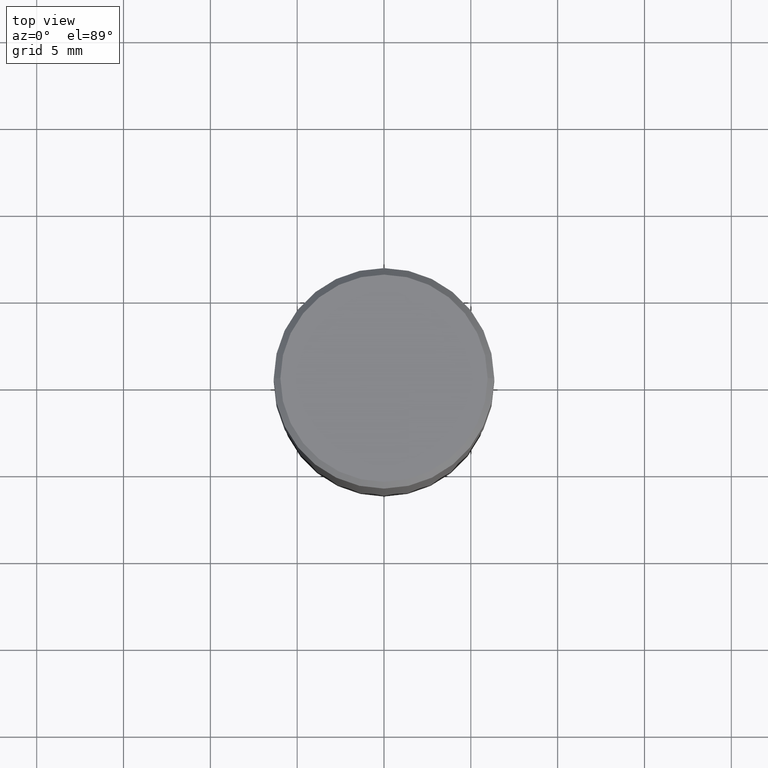
[diagram: clean part render]
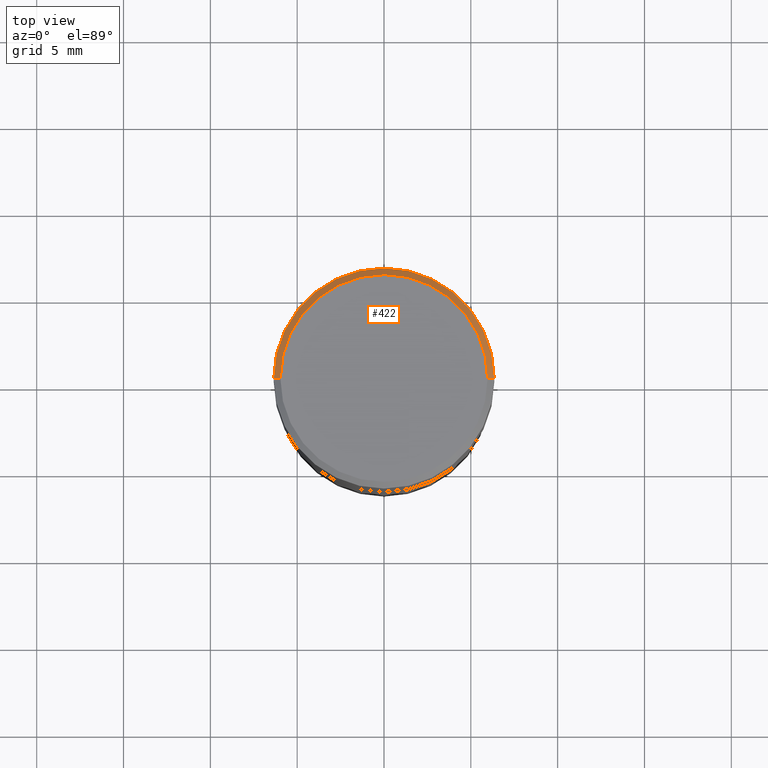
[diagram: same view with one face highlighted and labeled with its STEP entity id]
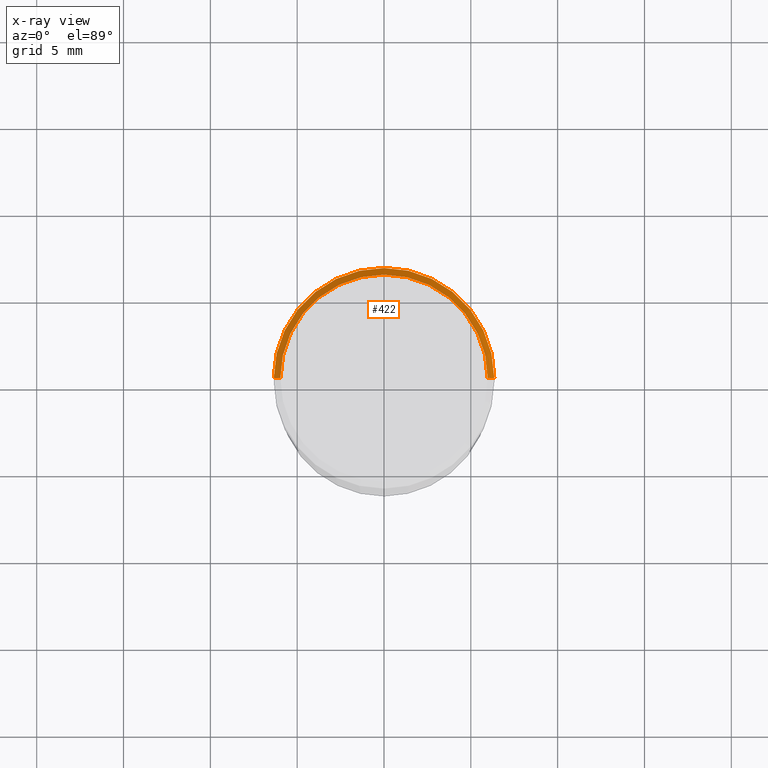
[diagram: x-ray of the same camera — body ghosted, the highlighted face saturated]
A machine part, top view. The second image highlights one B-rep face of the part: STEP entity #422.
The next image is the same camera in x-ray: the body ghosted, the highlighted face saturated — about 0% of this face is hidden behind the body in this view.
In plain terms, the highlighted conical surface has half-angle 45 deg.
Its self-contained STEP definition (entity closure, byte-faithful):
#60 = AXIS2_PLACEMENT_3D ( 'NONE', #328, #441, #232 ) ;
#75 = EDGE_LOOP ( 'NONE', ( #352, #413, #242, #461 ) ) ;
#120 = CIRCLE ( 'NONE', #209, 0.2500000000000000000 ) ;
#130 = CARTESIAN_POINT ( 'NONE',  ( -0.2500000000000000000, 1.693368449338919401E-15, -0.01499999999999999944 ) ) ;
#134 = CARTESIAN_POINT ( 'NONE',  ( -0.2349999999999999867, 1.667182339297596256E-15, 1.568636843340762393E-16 ) ) ;
#138 = CARTESIAN_POINT ( 'NONE',  ( -0.2500000000000000000, 9.455763057682970257E-16, -0.01499999999999999944 ) ) ;
#180 = VERTEX_POINT ( 'NONE', #435 ) ;
#183 = AXIS2_PLACEMENT_3D ( 'NONE', #308, #276, #411 ) ;
#208 = DIRECTION ( 'NONE',  ( 0.7071067811865441310, -7.319954787623245001E-15, -0.7071067811865509034 ) ) ;
#209 = AXIS2_PLACEMENT_3D ( 'NONE', #293, #443, #301 ) ;
#213 = EDGE_CURVE ( 'NONE', #253, #302, #120, .T. ) ;
#232 = DIRECTION ( 'NONE',  ( -1.000000000000000000, 6.982962677686266711E-15, 0.000000000000000000 ) ) ;
#240 = LINE ( 'NONE', #311, #444 ) ;
#242 = ORIENTED_EDGE ( 'NONE', *, *, #213, .T. ) ;
#245 = LINE ( 'NONE', #130, #356 ) ;
#253 = VERTEX_POINT ( 'NONE', #278 ) ;
#254 = CIRCLE ( 'NONE', #183, 0.2349999999999999867 ) ;
#259 = EDGE_CURVE ( 'NONE', #360, #302, #245, .T. ) ;
#276 = DIRECTION ( 'NONE',  ( -2.445468806185136597E-29, 3.491481338843145583E-15, 1.000000000000000000 ) ) ;
#278 = CARTESIAN_POINT ( 'NONE',  ( 0.2500000000000000000, -1.798112889504214151E-15, -0.01499999999999999944 ) ) ;
#293 = CARTESIAN_POINT ( 'NONE',  ( 3.668203209277705088E-31, -5.237222008264718399E-17, -0.01499999999999999944 ) ) ;
#297 = EDGE_CURVE ( 'NONE', #180, #360, #254, .T. ) ;
#301 = DIRECTION ( 'NONE',  ( 1.000000000000000000, -6.982962677686266711E-15, 0.000000000000000000 ) ) ;
#302 = VERTEX_POINT ( 'NONE', #138 ) ;
#308 = CARTESIAN_POINT ( 'NONE',  ( -3.836052468622837406E-45, 5.476866265946494270E-31, 1.568636843340877764E-16 ) ) ;
#311 = CARTESIAN_POINT ( 'NONE',  ( 0.2500000000000000000, -1.767496719525530167E-15, -0.01499999999999999944 ) ) ;
#315 = DIRECTION ( 'NONE',  ( -0.7071067811865441310, 2.468850131082221167E-15, -0.7071067811865509034 ) ) ;
#323 = EDGE_CURVE ( 'NONE', #180, #253, #240, .T. ) ;
#328 = CARTESIAN_POINT ( 'NONE',  ( 3.668203209277705088E-31, -5.237222008264718399E-17, -0.01499999999999999944 ) ) ;
#334 = FACE_OUTER_BOUND ( 'NONE', #75, .T. ) ;
#342 = CONICAL_SURFACE ( 'NONE', #60, 0.2500000000000000000, 0.7853981633974435050 ) ;
#352 = ORIENTED_EDGE ( 'NONE', *, *, #297, .F. ) ;
#356 = VECTOR ( 'NONE', #315, 39.37007874015748143 ) ;
#360 = VERTEX_POINT ( 'NONE', #134 ) ;
#411 = DIRECTION ( 'NONE',  ( 1.000000000000000000, -6.982962677686267499E-15, 4.878549297894958458E-29 ) ) ;
#413 = ORIENTED_EDGE ( 'NONE', *, *, #323, .T. ) ;
#422 = ADVANCED_FACE ( 'NONE', ( #334 ), #342, .T. ) ;
#435 = CARTESIAN_POINT ( 'NONE',  ( 0.2349999999999999867, -1.689856874500919833E-15, 1.568636843340994368E-16 ) ) ;
#441 = DIRECTION ( 'NONE',  ( 2.445468806185136597E-29, -3.491481338843145583E-15, -1.000000000000000000 ) ) ;
#443 = DIRECTION ( 'NONE',  ( -2.445468806185136597E-29, 3.491481338843145583E-15, 1.000000000000000000 ) ) ;
#444 = VECTOR ( 'NONE', #208, 39.37007874015748143 ) ;
#461 = ORIENTED_EDGE ( 'NONE', *, *, #259, .F. ) ;